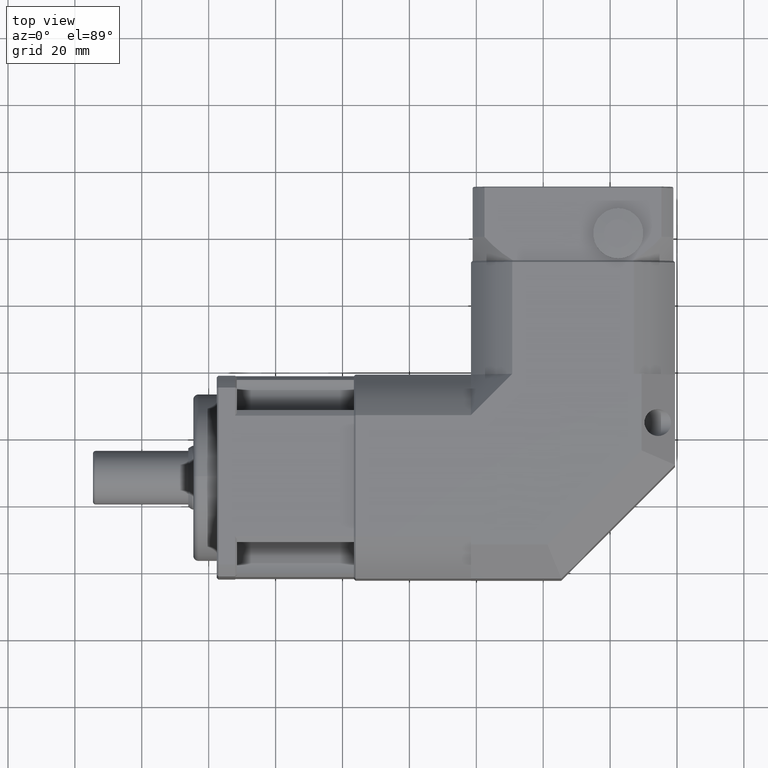
[diagram: clean part render]
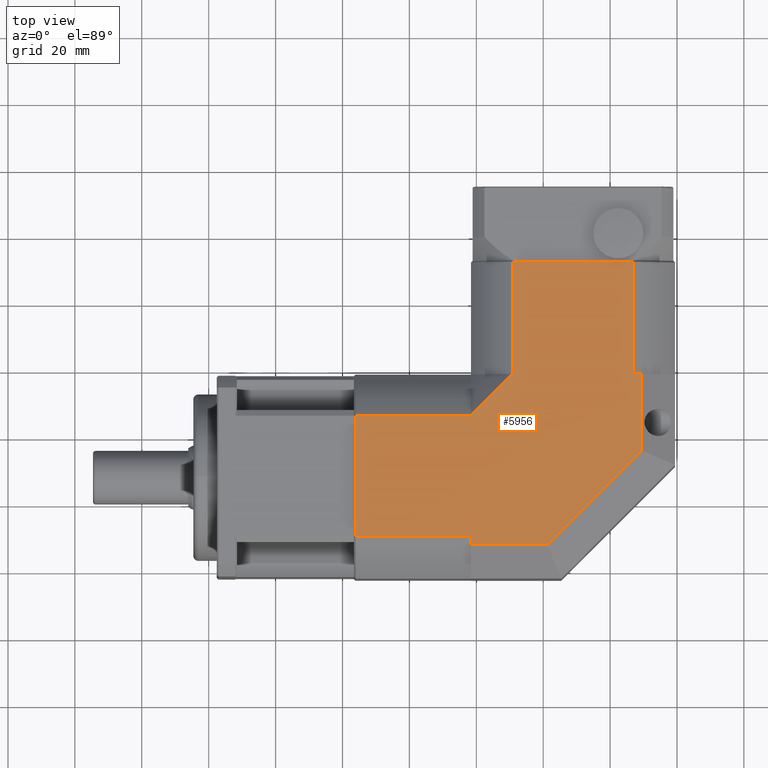
[diagram: same view with one face highlighted and labeled with its STEP entity id]
A machine part, top view. The second image highlights one B-rep face of the part: STEP entity #5956.
In plain terms, the highlighted planar face has unit normal (-0, -0, 1).
Its self-contained STEP definition (entity closure, byte-faithful):
#302=LINE('',#9684,#610);
#306=LINE('',#9702,#614);
#316=LINE('',#9729,#624);
#330=LINE('',#9768,#638);
#331=LINE('',#9771,#639);
#335=LINE('',#9777,#643);
#337=LINE('',#9780,#645);
#339=LINE('',#9816,#647);
#347=LINE('',#9857,#655);
#348=LINE('',#9901,#656);
#349=LINE('',#9904,#657);
#350=LINE('',#9905,#658);
#610=VECTOR('',#7735,2.33409787541505);
#614=VECTOR('',#7751,34.5);
#624=VECTOR('',#7777,33.5);
#638=VECTOR('',#7815,2.33409787544936);
#639=VECTOR('',#7818,22.8578643762691);
#643=VECTOR('',#7824,39.7989898732233);
#645=VECTOR('',#7828,22.8578643762691);
#647=VECTOR('',#7832,17.443048495094);
#655=VECTOR('',#7884,34.5);
#656=VECTOR('',#7907,36.3318042491699);
#657=VECTOR('',#7910,36.3318042490722);
#658=VECTOR('',#7911,33.5);
#996=PLANE('',#6577);
#1488=FACE_OUTER_BOUND('',#1999,.T.);
#1999=EDGE_LOOP('',(#4665,#4666,#4667,#4668,#4669,#4670,#4671,#4672,#4673,
#4674,#4675,#4676));
#2797=VERTEX_POINT('',#9680);
#2799=VERTEX_POINT('',#9683);
#2805=VERTEX_POINT('',#9698);
#2807=VERTEX_POINT('',#9701);
#2815=VERTEX_POINT('',#9725);
#2816=VERTEX_POINT('',#9727);
#2827=VERTEX_POINT('',#9762);
#2829=VERTEX_POINT('',#9766);
#2830=VERTEX_POINT('',#9770);
#2831=VERTEX_POINT('',#9775);
#2843=VERTEX_POINT('',#9855);
#2844=VERTEX_POINT('',#9903);
#3422=EDGE_CURVE('',#2799,#2797,#302,.T.);
#3430=EDGE_CURVE('',#2807,#2805,#306,.T.);
#3444=EDGE_CURVE('',#2815,#2816,#316,.T.);
#3463=EDGE_CURVE('',#2827,#2829,#330,.T.);
#3464=EDGE_CURVE('',#2830,#2797,#331,.T.);
#3468=EDGE_CURVE('',#2831,#2830,#335,.T.);
#3470=EDGE_CURVE('',#2827,#2831,#337,.T.);
#3473=EDGE_CURVE('',#2816,#2807,#339,.T.);
#3490=EDGE_CURVE('',#2843,#2799,#347,.T.);
#3502=EDGE_CURVE('',#2843,#2805,#348,.T.);
#3503=EDGE_CURVE('',#2815,#2844,#349,.T.);
#3504=EDGE_CURVE('',#2829,#2844,#350,.T.);
#4665=ORIENTED_EDGE('',*,*,#3503,.F.);
#4666=ORIENTED_EDGE('',*,*,#3444,.T.);
#4667=ORIENTED_EDGE('',*,*,#3473,.T.);
#4668=ORIENTED_EDGE('',*,*,#3430,.T.);
#4669=ORIENTED_EDGE('',*,*,#3502,.F.);
#4670=ORIENTED_EDGE('',*,*,#3490,.T.);
#4671=ORIENTED_EDGE('',*,*,#3422,.T.);
#4672=ORIENTED_EDGE('',*,*,#3464,.F.);
#4673=ORIENTED_EDGE('',*,*,#3468,.F.);
#4674=ORIENTED_EDGE('',*,*,#3470,.F.);
#4675=ORIENTED_EDGE('',*,*,#3463,.T.);
#4676=ORIENTED_EDGE('',*,*,#3504,.T.);
#5956=ADVANCED_FACE('',(#1488),#996,.T.);
#6577=AXIS2_PLACEMENT_3D('',#9902,#7908,#7909);
#7735=DIRECTION('',(9.8731271459529E-16,-1.,-5.58155649165257E-16));
#7751=DIRECTION('',(-1.,-9.87312714595288E-16,-3.19187243517474E-15));
#7777=DIRECTION('',(9.87312714595289E-16,-1.,-2.66949609919315E-16));
#7815=DIRECTION('',(-1.,-9.87312714595288E-16,-3.19187243517474E-15));
#7818=DIRECTION('',(-1.,-9.87312714595288E-16,-3.19187243517474E-15));
#7824=DIRECTION('',(-0.707106781186547,-0.707106781186548,-2.65167028807681E-15));
#7828=DIRECTION('',(9.8731271459529E-16,-1.,-5.58155649165257E-16));
#7832=DIRECTION('',(-0.707106781188364,-0.707106781184731,-2.70035032865868E-15));
#7884=DIRECTION('',(1.,9.87312714595288E-16,3.19187243517474E-15));
#7907=DIRECTION('',(-9.8731271459529E-16,1.,5.58155649165257E-16));
#7908=DIRECTION('center_axis',(-3.19187243517474E-15,-5.58155649165261E-16,
1.));
#7909=DIRECTION('ref_axis',(9.76996261670138E-16,-1.,-7.105427357601E-16));
#7910=DIRECTION('',(1.,9.87312714595288E-16,3.19187243517474E-15));
#7911=DIRECTION('',(-9.87312714595289E-16,1.,2.66949609919315E-16));
#9680=CARTESIAN_POINT('',(38.4079195786629,27.6548138820487,32.8836505674067));
#9683=CARTESIAN_POINT('',(38.4079195786629,29.9889117574637,32.8836505674067));
#9684=CARTESIAN_POINT('',(38.4079195786629,63.4048138820487,32.8836505674067));
#9698=CARTESIAN_POINT('',(3.9079195786629,66.3207160066336,32.8836505674066));
#9701=CARTESIAN_POINT('',(38.4079195786629,66.3207160066336,32.8836505674067));
#9702=CARTESIAN_POINT('',(3.4079195786629,66.3207160066336,32.8836505674066));
#9725=CARTESIAN_POINT('',(50.7420174541413,112.154813882049,32.8836505674068));
#9727=CARTESIAN_POINT('',(50.7420174541414,78.6548138820487,32.8836505674067));
#9729=CARTESIAN_POINT('',(50.7420174541413,112.654813882049,32.8836505674068));
#9762=CARTESIAN_POINT('',(89.4079195786629,78.6548138820488,32.8836505674069));
#9766=CARTESIAN_POINT('',(87.0738217032135,78.6548138820488,32.8836505674069));
#9768=CARTESIAN_POINT('',(36.1579195786702,78.6548138820487,32.8836505674067));
#9770=CARTESIAN_POINT('',(61.265783954932,27.6548138820487,32.8836505674067));
#9771=CARTESIAN_POINT('',(3.40791957866294,27.6548138820486,32.8836505674066));
#9775=CARTESIAN_POINT('',(89.4079195786629,55.7969495057797,32.8836505674069));
#9777=CARTESIAN_POINT('',(66.5868517667975,32.9758816939142,32.8836505674068));
#9780=CARTESIAN_POINT('',(89.4079195786629,63.4048138820487,32.8836505674069));
#9816=CARTESIAN_POINT('',(50.7420174541414,78.6548138820487,32.8836505674067));
#9855=CARTESIAN_POINT('',(3.90791957866293,29.9889117574637,32.8836505674066));
#9857=CARTESIAN_POINT('',(3.40791957866293,29.9889117574637,32.8836505674066));
#9901=CARTESIAN_POINT('',(3.9079195786629,63.4048138820487,32.8836505674066));
#9902=CARTESIAN_POINT('Origin',(3.40791957866288,78.6548138820487,32.8836505674066));
#9903=CARTESIAN_POINT('',(87.0738217032135,112.154813882049,32.8836505674069));
#9904=CARTESIAN_POINT('',(36.1579195786701,112.154813882049,32.8836505674067));
#9905=CARTESIAN_POINT('',(87.0738217032135,112.654813882049,32.8836505674069));